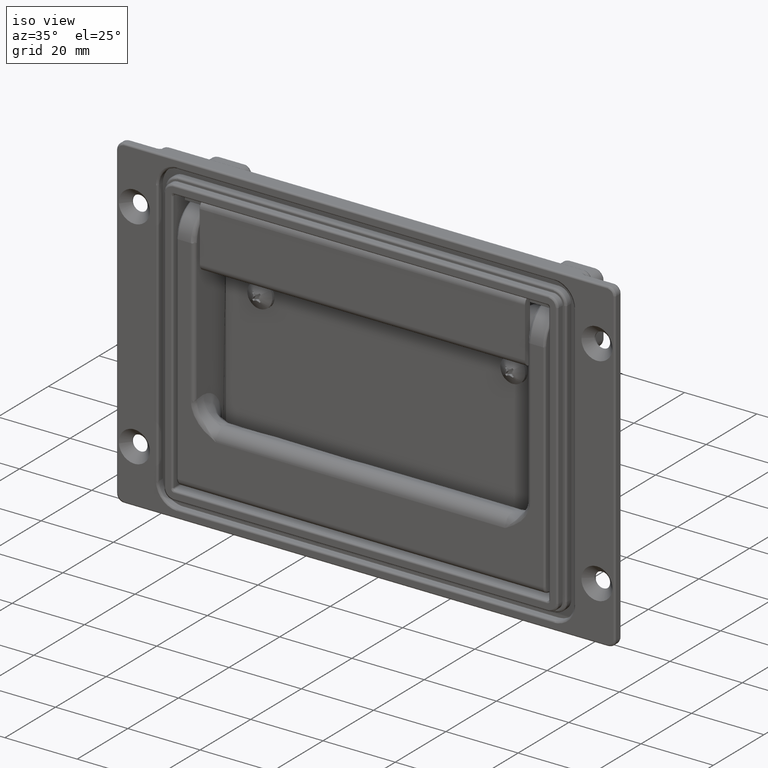
[diagram: clean part render]
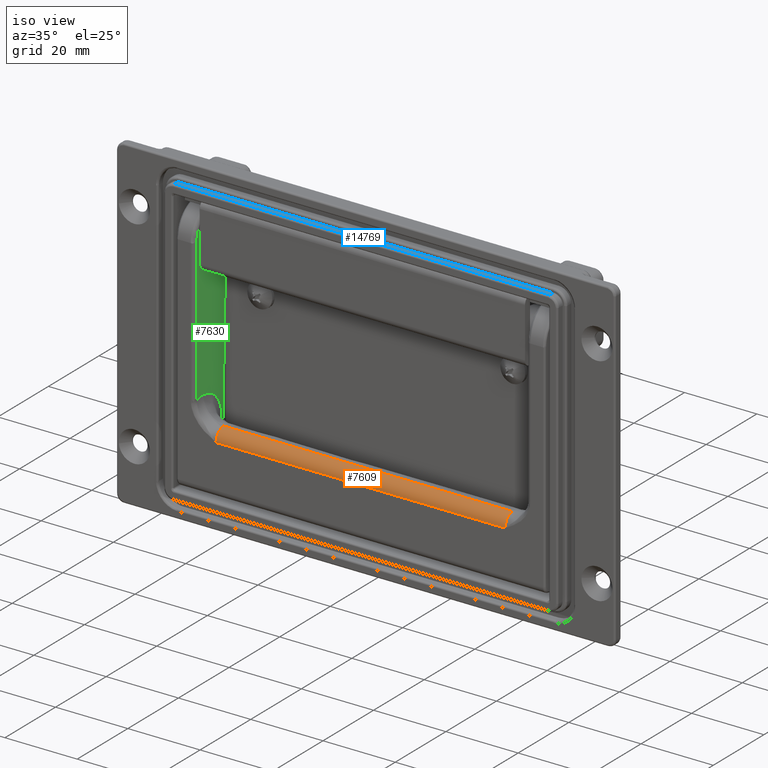
[diagram: same view with three faces highlighted in distinct colors, each labeled with its STEP entity id]
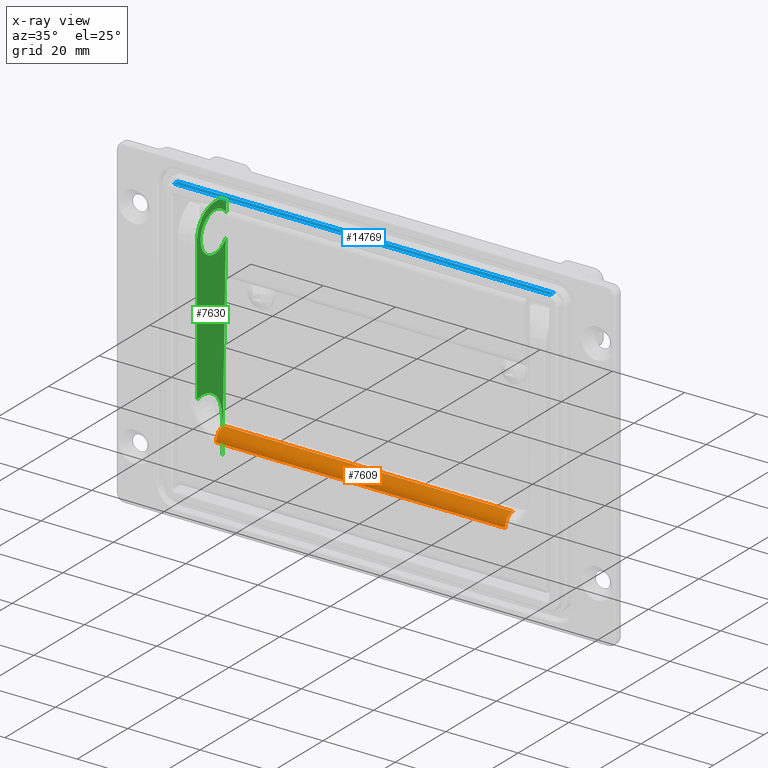
[diagram: x-ray of the same camera — body ghosted, the three highlighted faces saturated]
A machine part, iso view with three faces highlighted in distinct colors.
The next image is the same camera in x-ray (body ghosted, the three faces saturated) — at least one of them is partly hidden behind the body in this view.
Their STEP definitions:

[orange] entity #7609 — the highlighted face is a freeform B-spline surface patch.
#5539=CARTESIAN_POINT('',(40.0,-8.0,-48.0));
#5540=VERTEX_POINT('',#5539);
#6264=CARTESIAN_POINT('',(-40.0,-8.0,-48.0));
#6265=VERTEX_POINT('',#6264);
#6764=CARTESIAN_POINT('',(-40.0,-5.0,-45.0));
#6765=VERTEX_POINT('',#6764);
#6824=CARTESIAN_POINT('',(-40.0,-5.0,-45.0));
#6825=CARTESIAN_POINT('',(-39.999999999999993,-8.0,-45.0));
#6826=CARTESIAN_POINT('',(-40.0,-8.0,-48.0));
#6834=(BOUNDED_CURVE()B_SPLINE_CURVE(2,(#6824,#6825,#6826),.UNSPECIFIED.,.F.,.U.)CURVE()GEOMETRIC_REPRESENTATION_ITEM()QUASI_UNIFORM_CURVE()RATIONAL_B_SPLINE_CURVE((1.0,0.707106781186548,1.0))REPRESENTATION_ITEM(''));
#6835=EDGE_CURVE('',#6765,#6265,#6834,.T.);
#7077=CARTESIAN_POINT('',(40.0,-5.0,-45.0));
#7078=VERTEX_POINT('',#7077);
#7125=CARTESIAN_POINT('',(40.0,-8.0,-48.0));
#7126=CARTESIAN_POINT('',(39.999999999999993,-8.0,-45.0));
#7127=CARTESIAN_POINT('',(40.0,-5.0,-45.0));
#7135=(BOUNDED_CURVE()B_SPLINE_CURVE(2,(#7125,#7126,#7127),.UNSPECIFIED.,.F.,.U.)CURVE()GEOMETRIC_REPRESENTATION_ITEM()QUASI_UNIFORM_CURVE()RATIONAL_B_SPLINE_CURVE((1.0,0.707106781186548,1.0))REPRESENTATION_ITEM(''));
#7136=EDGE_CURVE('',#5540,#7078,#7135,.T.);
#7441=CARTESIAN_POINT('',(40.0,-5.0,-45.0));
#7442=CARTESIAN_POINT('',(-40.0,-5.0,-45.0));
#7443=QUASI_UNIFORM_CURVE('',1,(#7441,#7442),.UNSPECIFIED.,.F.,.U.);
#7444=EDGE_CURVE('',#7078,#6765,#7443,.T.);
#7579=CARTESIAN_POINT('',(40.0,-8.0,-48.0));
#7580=CARTESIAN_POINT('',(-40.0,-8.0,-48.0));
#7581=QUASI_UNIFORM_CURVE('',1,(#7579,#7580),.UNSPECIFIED.,.F.,.U.);
#7582=EDGE_CURVE('',#5540,#6265,#7581,.T.);
#7589=CARTESIAN_POINT('',(42.000000000000007,-4.921469155076379,-45.001028025073332));
#7590=CARTESIAN_POINT('',(-42.049999999999997,-4.921469155076379,-45.001028025073332));
#7591=CARTESIAN_POINT('',(42.0,-8.224954401664153,-44.914523219501234));
#7592=CARTESIAN_POINT('',(-42.050000000000004,-8.224954401664153,-44.914523219501234));
#7593=CARTESIAN_POINT('',(42.000000000000007,-7.992573438142419,-48.210960226877965));
#7594=CARTESIAN_POINT('',(-42.050000000000004,-7.992573438142419,-48.210960226877965));
#7602=(BOUNDED_SURFACE()B_SPLINE_SURFACE(1,2,((#7589,#7591,#7593),(#7590,#7592,#7594)),.UNSPECIFIED.,.F.,.F.,.U.)B_SPLINE_SURFACE_WITH_KNOTS((2,2),(3,3),(0.0,84.050000000000011),(0.0,5.313427032265102),.UNSPECIFIED.)GEOMETRIC_REPRESENTATION_ITEM()RATIONAL_B_SPLINE_SURFACE(((1.0,0.670944223154768,0.996392648609106),(1.0,0.670944223154768,0.996392648609106)))REPRESENTATION_ITEM('')SURFACE());
#7603=ORIENTED_EDGE('',*,*,#7582,.F.);
#7604=ORIENTED_EDGE('',*,*,#7136,.T.);
#7605=ORIENTED_EDGE('',*,*,#7444,.T.);
#7606=ORIENTED_EDGE('',*,*,#6835,.T.);
#7607=EDGE_LOOP('',(#7603,#7604,#7605,#7606));
#7608=FACE_OUTER_BOUND('',#7607,.T.);
#7609=ADVANCED_FACE('',(#7608),#7602,.T.);

[blue] entity #14769 — the highlighted face is a freeform B-spline surface patch.
#9915=CARTESIAN_POINT('',(-52.0,-7.500000000000000,13.300000000000001));
#9916=VERTEX_POINT('',#9915);
#10037=CARTESIAN_POINT('',(52.0,-7.500000000000000,13.300000000000001));
#10038=VERTEX_POINT('',#10037);
#10052=CARTESIAN_POINT('',(-52.0,-7.500000000000000,13.300000000000001));
#10053=CARTESIAN_POINT('',(52.0,-7.500000000000000,13.300000000000001));
#10054=QUASI_UNIFORM_CURVE('',1,(#10052,#10053),.UNSPECIFIED.,.F.,.U.);
#10055=EDGE_CURVE('',#9916,#10038,#10054,.T.);
#14624=CARTESIAN_POINT('',(-52.0,-6.000000000000120,13.300000000000001));
#14625=VERTEX_POINT('',#14624);
#14639=CARTESIAN_POINT('',(52.0,-6.000000000000120,13.300000000000001));
#14640=VERTEX_POINT('',#14639);
#14641=CARTESIAN_POINT('',(52.0,-6.000000000000120,13.300000000000001));
#14642=CARTESIAN_POINT('',(-52.0,-6.000000000000120,13.300000000000001));
#14643=QUASI_UNIFORM_CURVE('',1,(#14641,#14642),.UNSPECIFIED.,.F.,.U.);
#14644=EDGE_CURVE('',#14640,#14625,#14643,.T.);
#14745=CARTESIAN_POINT('',(-52.0,-7.500000000000000,13.300000000000001));
#14746=CARTESIAN_POINT('',(-52.0,-6.000000000000120,13.300000000000001));
#14747=QUASI_UNIFORM_CURVE('',1,(#14745,#14746),.UNSPECIFIED.,.F.,.U.);
#14748=EDGE_CURVE('',#9916,#14625,#14747,.T.);
#14754=CARTESIAN_POINT('',(57.194799798427823,-7.574924997092703,13.300000000000001));
#14755=CARTESIAN_POINT('',(-57.194802587925203,-7.574924997092703,13.300000000000001));
#14756=CARTESIAN_POINT('',(57.194799798427823,-5.925074962674281,13.300000000000001));
#14757=CARTESIAN_POINT('',(-57.194802587925210,-5.925074962674281,13.300000000000001));
#14758=B_SPLINE_SURFACE_WITH_KNOTS('',1,1,((#14754,#14756),(#14755,#14757)),.UNSPECIFIED.,.F.,.F.,.U.,(2,2),(2,2),(0.0,114.389602386353000),(0.041708334948495,0.958291687403247),.UNSPECIFIED.);
#14759=ORIENTED_EDGE('',*,*,#14748,.F.);
#14760=ORIENTED_EDGE('',*,*,#10055,.T.);
#14761=CARTESIAN_POINT('',(52.0,-7.500000000000000,13.300000000000001));
#14762=CARTESIAN_POINT('',(52.0,-6.000000000000120,13.300000000000001));
#14763=QUASI_UNIFORM_CURVE('',1,(#14761,#14762),.UNSPECIFIED.,.F.,.U.);
#14764=EDGE_CURVE('',#10038,#14640,#14763,.T.);
#14765=ORIENTED_EDGE('',*,*,#14764,.T.);
#14766=ORIENTED_EDGE('',*,*,#14644,.T.);
#14767=EDGE_LOOP('',(#14759,#14760,#14765,#14766));
#14768=FACE_OUTER_BOUND('',#14767,.T.);
#14769=ADVANCED_FACE('',(#14768),#14758,.F.);

[green] entity #7630 — the highlighted face is a freeform B-spline surface patch.
#3751=CARTESIAN_POINT('',(-46.0,4.575240699192150,3.052404387438815));
#3752=VERTEX_POINT('',#3751);
#3766=CARTESIAN_POINT('',(-46.0,-4.952506210060644,-2.392212815103191));
#3767=VERTEX_POINT('',#3766);
#3768=CARTESIAN_POINT('',(-46.0,-4.952506210060644,-2.392212815103191));
#3769=CARTESIAN_POINT('',(-46.0,-5.530563801788707,-1.195482427576712));
#3770=CARTESIAN_POINT('',(-46.0,-5.498387908816626,0.133155563830924));
#3771=CARTESIAN_POINT('',(-46.000000000000007,-5.400840651437997,4.161170954835589));
#3772=CARTESIAN_POINT('',(-46.0,-1.530866949213216,5.282655239915493));
#3773=CARTESIAN_POINT('',(-46.000000000000007,2.339106753011565,6.404139524995395));
#3774=CARTESIAN_POINT('',(-46.0,4.575240699192148,3.052404387438817));
#3782=(BOUNDED_CURVE()B_SPLINE_CURVE(2,(#3768,#3769,#3770,#3771,#3772,#3773,#3774),.UNSPECIFIED.,.F.,.U.)B_SPLINE_CURVE_WITH_KNOTS((3,2,2,3),(0.405265379025167,0.500000000000000,0.750000000000000,1.0),.UNSPECIFIED.)CURVE()GEOMETRIC_REPRESENTATION_ITEM()RATIONAL_B_SPLINE_CURVE((0.909013264135189,0.926749014786755,1.0,0.806694256916105,1.0,0.806694256916105,1.0))REPRESENTATION_ITEM(''));
#3783=EDGE_CURVE('',#3767,#3752,#3782,.T.);
#3828=CARTESIAN_POINT('',(-46.0,4.422122610538590,-3.270295340999550));
#3829=VERTEX_POINT('',#3828);
#3830=CARTESIAN_POINT('',(-46.0,4.422122610538591,-3.270295340999549));
#3831=CARTESIAN_POINT('',(-46.000000000000007,2.026365856899120,-6.509859051591367));
#3832=CARTESIAN_POINT('',(-46.0,-1.784784654648066,-5.202359439382556));
#3833=CARTESIAN_POINT('',(-46.000000000000007,-3.954706226468156,-4.457919773438603));
#3834=CARTESIAN_POINT('',(-46.0,-4.952506210060644,-2.392212815103191));
#3842=(BOUNDED_CURVE()B_SPLINE_CURVE(2,(#3830,#3831,#3832,#3833,#3834),.UNSPECIFIED.,.F.,.U.)B_SPLINE_CURVE_WITH_KNOTS((3,2,3),(0.0,0.250000000000000,0.405265379025167),.UNSPECIFIED.)CURVE()GEOMETRIC_REPRESENTATION_ITEM()RATIONAL_B_SPLINE_CURVE((1.0,0.806694256916105,1.0,0.879945242129350,0.909013264135189))REPRESENTATION_ITEM(''));
#3843=EDGE_CURVE('',#3829,#3767,#3842,.T.);
#5819=CARTESIAN_POINT('',(-46.0,9.184548E-016,7.500000000000000));
#5820=VERTEX_POINT('',#5819);
#5834=CARTESIAN_POINT('',(-46.0,4.170693817938799,7.500000000000000));
#5835=VERTEX_POINT('',#5834);
#5836=CARTESIAN_POINT('',(-46.0,4.170693817938799,7.500000000000000));
#5837=CARTESIAN_POINT('',(-46.0,9.184548E-016,7.500000000000000));
#5838=QUASI_UNIFORM_CURVE('',1,(#5836,#5837),.UNSPECIFIED.,.F.,.U.);
#5839=EDGE_CURVE('',#5835,#5820,#5838,.T.);
#5897=CARTESIAN_POINT('',(-46.0,4.670547264194860,6.987894948742641));
#5898=VERTEX_POINT('',#5897);
#5930=CARTESIAN_POINT('',(-46.0,4.670547264194857,6.987894948742641));
#5931=CARTESIAN_POINT('',(-45.999999999999993,4.675647402432875,7.198494773597226));
#5932=CARTESIAN_POINT('',(-46.0,4.528501395855115,7.349247386798614));
#5933=CARTESIAN_POINT('',(-45.999999999999993,4.381355389277355,7.500000000000000));
#5934=CARTESIAN_POINT('',(-46.0,4.170693817938799,7.500000000000000));
#5942=(BOUNDED_CURVE()B_SPLINE_CURVE(2,(#5930,#5931,#5932,#5933,#5934),.UNSPECIFIED.,.F.,.U.)B_SPLINE_CURVE_WITH_KNOTS((3,2,3),(0.0,0.500000000000000,1.0),.UNSPECIFIED.)CURVE()GEOMETRIC_REPRESENTATION_ITEM()RATIONAL_B_SPLINE_CURVE((1.0,0.921546193524021,1.0,0.921546193524021,1.0))REPRESENTATION_ITEM(''));
#5943=EDGE_CURVE('',#5898,#5835,#5942,.T.);
#5988=CARTESIAN_POINT('',(-46.0,-7.0,-1.114866E-014));
#5989=VERTEX_POINT('',#5988);
#5999=CARTESIAN_POINT('',(-46.0,9.184548E-016,7.500000000000000));
#6000=CARTESIAN_POINT('',(-46.0,-1.462096054291676,7.499780575631760));
#6001=CARTESIAN_POINT('',(-46.0,-2.837484709269985,6.849703042357500));
#6002=CARTESIAN_POINT('',(-46.0,-4.166612644141120,6.221490641317620));
#6003=CARTESIAN_POINT('',(-46.0,-5.126524163602469,5.126524163602469));
#6004=CARTESIAN_POINT('',(-46.0,-6.046259712871310,4.077386222870785));
#6005=CARTESIAN_POINT('',(-46.0,-6.533411784285899,2.709981299245325));
#6006=CARTESIAN_POINT('',(-46.0,-6.999849461248640,1.400720365198172));
#6007=CARTESIAN_POINT('',(-46.0,-7.0,-1.114866E-014));
#6008=B_SPLINE_CURVE_WITH_KNOTS('',2,(#5999,#6000,#6001,#6002,#6003,#6004,#6005,#6006,#6007),.UNSPECIFIED.,.F.,.U.,(3,2,2,2,3),(0.0,0.250000000000000,0.500000000000000,0.750000000000000,1.0),.UNSPECIFIED.);
#6009=EDGE_CURVE('',#5820,#5989,#6008,.T.);
#6050=CARTESIAN_POINT('',(-46.0,3.153747553743950,-55.645260948742603));
#6051=VERTEX_POINT('',#6050);
#6073=CARTESIAN_POINT('',(-46.0,4.575240699192150,3.052404387438815));
#6074=CARTESIAN_POINT('',(-46.0,4.670547264194860,6.987894948742641));
#6075=QUASI_UNIFORM_CURVE('',1,(#6073,#6074),.UNSPECIFIED.,.F.,.U.);
#6076=EDGE_CURVE('',#3752,#5898,#6075,.T.);
#6079=CARTESIAN_POINT('',(-46.0,3.153747553743950,-55.645260948742603));
#6080=CARTESIAN_POINT('',(-46.0,4.422122610538590,-3.270295340999550));
#6081=QUASI_UNIFORM_CURVE('',1,(#6079,#6080),.UNSPECIFIED.,.F.,.U.);
#6082=EDGE_CURVE('',#6051,#3829,#6081,.T.);
#6103=CARTESIAN_POINT('',(-46.0,-7.0,-39.225035612607897));
#6104=VERTEX_POINT('',#6103);
#6118=CARTESIAN_POINT('',(-46.0,-7.0,-1.114866E-014));
#6119=CARTESIAN_POINT('',(-46.0,-7.0,-39.225035612607897));
#6120=QUASI_UNIFORM_CURVE('',1,(#6118,#6119),.UNSPECIFIED.,.F.,.U.);
#6121=EDGE_CURVE('',#5989,#6104,#6120,.T.);
#6149=CARTESIAN_POINT('',(-46.0,3.0,-56.857162438311697));
#6150=VERTEX_POINT('',#6149);
#6180=CARTESIAN_POINT('',(-46.0,2.999999999999988,-56.857162438311697));
#6181=CARTESIAN_POINT('',(-46.0,3.138882372962015,-56.259078397250200));
#6182=CARTESIAN_POINT('',(-46.0,3.153747553743950,-55.645260948742603));
#6190=(BOUNDED_CURVE()B_SPLINE_CURVE(2,(#6180,#6181,#6182),.UNSPECIFIED.,.F.,.U.)CURVE()GEOMETRIC_REPRESENTATION_ITEM()QUASI_UNIFORM_CURVE()RATIONAL_B_SPLINE_CURVE((1.0,0.994804756530657,1.0))REPRESENTATION_ITEM(''));
#6191=EDGE_CURVE('',#6150,#6051,#6190,.T.);
#6603=CARTESIAN_POINT('',(-46.0,3.0,-50.500000000000000));
#6604=VERTEX_POINT('',#6603);
#6605=CARTESIAN_POINT('',(-46.0,3.0,-50.500000000000000));
#6606=CARTESIAN_POINT('',(-46.0,3.0,-56.857162438311697));
#6607=QUASI_UNIFORM_CURVE('',1,(#6605,#6606),.UNSPECIFIED.,.F.,.U.);
#6608=EDGE_CURVE('',#6604,#6150,#6607,.T.);
#6686=CARTESIAN_POINT('',(-46.0,-4.500000000000000,-39.0));
#6687=VERTEX_POINT('',#6686);
#6729=CARTESIAN_POINT('',(-46.0,-4.500000000000000,-39.0));
#6730=CARTESIAN_POINT('',(-46.0,-3.388750868300295,-39.000174019148197));
#6731=CARTESIAN_POINT('',(-46.0,-2.291010807123905,-39.392198393810503));
#6732=CARTESIAN_POINT('',(-46.0,-1.239012386404604,-39.767887537000050));
#6733=CARTESIAN_POINT('',(-46.0,-0.338317673029648,-40.452810083939752));
#6734=CARTESIAN_POINT('',(-46.0,1.342336356033862,-41.730843385364750));
#6735=CARTESIAN_POINT('',(-46.0,2.217514421272200,-43.782485578727808));
#6736=CARTESIAN_POINT('',(-46.0,2.898204840624470,-45.378198771769000));
#6737=CARTESIAN_POINT('',(-46.0,3.006521201654205,-47.390697112033699));
#6738=CARTESIAN_POINT('',(-46.0,3.042732361334360,-48.063493890494208));
#6739=CARTESIAN_POINT('',(-46.0,3.025967602732705,-49.002333888662200));
#6740=CARTESIAN_POINT('',(-46.0,3.000001265052955,-50.456469733915597));
#6741=CARTESIAN_POINT('',(-46.0,3.0,-50.500000000000000));
#6742=B_SPLINE_CURVE_WITH_KNOTS('',2,(#6729,#6730,#6731,#6732,#6733,#6734,#6735,#6736,#6737,#6738,#6739,#6740,#6741),.UNSPECIFIED.,.F.,.U.,(3,2,2,2,2,2,3),(0.0,0.125000000000000,0.250000000000000,0.500000000000000,0.750000000000000,0.875000000000000,1.0),.UNSPECIFIED.);
#6743=EDGE_CURVE('',#6687,#6604,#6742,.T.);
#6762=CARTESIAN_POINT('',(-46.0,-5.0,-39.0));
#6763=VERTEX_POINT('',#6762);
#6785=CARTESIAN_POINT('',(-46.0,-5.0,-39.0));
#6786=CARTESIAN_POINT('',(-46.0,-4.500000000000000,-39.0));
#6787=QUASI_UNIFORM_CURVE('',1,(#6785,#6786),.UNSPECIFIED.,.F.,.U.);
#6788=EDGE_CURVE('',#6763,#6687,#6787,.T.);
#6810=CARTESIAN_POINT('',(-46.0,-7.000000000000010,-39.225035612607883));
#6811=CARTESIAN_POINT('',(-45.999999999999993,-6.012660256735459,-39.0));
#6812=CARTESIAN_POINT('',(-46.0,-5.0,-39.0));
#6820=(BOUNDED_CURVE()B_SPLINE_CURVE(2,(#6810,#6811,#6812),.UNSPECIFIED.,.F.,.U.)CURVE()GEOMETRIC_REPRESENTATION_ITEM()QUASI_UNIFORM_CURVE()RATIONAL_B_SPLINE_CURVE((1.0,0.993729350236665,1.0))REPRESENTATION_ITEM(''));
#6821=EDGE_CURVE('',#6104,#6763,#6820,.T.);
#7610=CARTESIAN_POINT('',(-46.0,-7.582943813226751,10.714640139057000));
#7611=CARTESIAN_POINT('',(-46.0,5.253491390450079,10.714640139057000));
#7612=CARTESIAN_POINT('',(-46.0,-7.582943813226751,-60.071804303562317));
#7613=CARTESIAN_POINT('',(-46.0,5.253491390450079,-60.071804303562317));
#7614=B_SPLINE_SURFACE_WITH_KNOTS('',1,1,((#7610,#7612),(#7611,#7613)),.UNSPECIFIED.,.F.,.F.,.U.,(2,2),(2,2),(0.0,12.836435203676830),(0.0,70.786444442619313),.UNSPECIFIED.);
#7615=ORIENTED_EDGE('',*,*,#3843,.T.);
#7616=ORIENTED_EDGE('',*,*,#3783,.T.);
#7617=ORIENTED_EDGE('',*,*,#6076,.T.);
#7618=ORIENTED_EDGE('',*,*,#5943,.T.);
#7619=ORIENTED_EDGE('',*,*,#5839,.T.);
#7620=ORIENTED_EDGE('',*,*,#6009,.T.);
#7621=ORIENTED_EDGE('',*,*,#6121,.T.);
#7622=ORIENTED_EDGE('',*,*,#6821,.T.);
#7623=ORIENTED_EDGE('',*,*,#6788,.T.);
#7624=ORIENTED_EDGE('',*,*,#6743,.T.);
#7625=ORIENTED_EDGE('',*,*,#6608,.T.);
#7626=ORIENTED_EDGE('',*,*,#6191,.T.);
#7627=ORIENTED_EDGE('',*,*,#6082,.T.);
#7628=EDGE_LOOP('',(#7615,#7616,#7617,#7618,#7619,#7620,#7621,#7622,#7623,#7624,#7625,#7626,#7627));
#7629=FACE_OUTER_BOUND('',#7628,.T.);
#7630=ADVANCED_FACE('',(#7629),#7614,.F.);